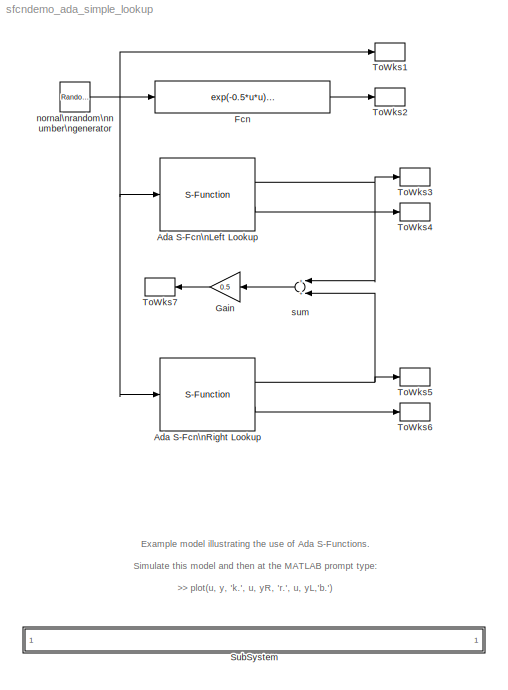
MODEL sfcndemo_ada_simple_lookup
KIND model
CONFIG InitFcn = TableX = linspace(-2, 2, 5)';TableY=exp(-0.5*TableX.*TableX)/sqrt(2*pi);
CONFIG PostLoadFcn = tmpStr = get_param(bdroot, 'RTWMakeCommand');incDir = fullfile(matlabroot,'simulink','ada','examples','simple_lookup');tmpStr = strrep(tmpStr, '<INCDIR>', incDir);set_param(bdroot, 'RTWMakeCommand', tmpStr);clear incDir tmpStr;
CONFIG StopFcn = try,    plot(u,y,'k.', u,yR,'r.', u,yL,'b.');end
BLOCK [S-Function] Ada S-Fcn\nLeft Lookup
  FunctionName = ada_simple_lookup
  Parameters = TableX, [TableY;0], 'left'
  Ports = [1, 2]
BLOCK [S-Function] Ada S-Fcn\nRight Lookup
  FunctionName = ada_simple_lookup
  Parameters = TableX, [0;TableY], 'right'
  Ports = [1, 2]
BLOCK [Fcn] Fcn
  Expr = exp(-0.5*u*u) / 2.506628274631
BLOCK [Gain] Gain
  Gain = 0.5
BLOCK [SubSystem] SubSystem
  MaskDisplay = disp('matlabroot<path>');
  MaskIconFrame = on
  MaskIconOpaque = on
  MaskIconRotate = none
  MaskIconUnits = autoscale
  MinAlgLoopOccurrences = off
  OpenFcn = evalin('base','edit(fullfile(matlabroot,''simulink'',''ada'',''examples'',''simple_lookup'',''simple_lookup.adb''))')
  Ports = []
  PropExecContextAcrossSSBoundary = on
  RTWSystemCode = Auto
  TreatAsAtomicUnit = off
BLOCK [ToWorkspace] ToWks1
  MaxDataPoints = inf
  SampleTime = -1
  SaveFormat = Array
  VariableName = u
BLOCK [ToWorkspace] ToWks2
  MaxDataPoints = inf
  SampleTime = -1
  SaveFormat = Array
  VariableName = y
BLOCK [ToWorkspace] ToWks3
  MaxDataPoints = inf
  SampleTime = -1
  SaveFormat = Array
  VariableName = yL
BLOCK [ToWorkspace] ToWks4
  MaxDataPoints = inf
  SampleTime = -1
  SaveFormat = Array
  VariableName = iL
BLOCK [ToWorkspace] ToWks5
  MaxDataPoints = inf
  SampleTime = -1
  SaveFormat = Array
  VariableName = yR
BLOCK [ToWorkspace] ToWks6
  MaxDataPoints = inf
  SampleTime = -1
  SaveFormat = Array
  VariableName = iR
BLOCK [ToWorkspace] ToWks7
  MaxDataPoints = inf
  SampleTime = -1
  SaveFormat = Array
  VariableName = yA
BLOCK [RandomNumber] nornal\nrandom\nnumber\ngenerator
  SampleTime = 0.01
BLOCK [Sum] sum
  Ports = [2, 1]
ANNOTATION (root): Example model illustrating the use of Ada S-Functions.\n\nSimulate this model and then at the MATLAB prompt type:\n\n>> plot(u, y, 'k.', u, yR, 'r.', u, yL,'b.')\n\nTo see the results. The black dots show the underlying bell curve.\nThe lookup tables implemented a Ada S-Functions try to approximate\nthis curve using left (blue dots) and right (red dots) continuous\ninterval based lookup methods.
NET Ada S-Fcn\nLeft Lookup:1 -> ToWks3:1, sum:1
LINE Ada S-Fcn\nLeft Lookup:2 -> ToWks4:1
NET Ada S-Fcn\nRight Lookup:1 -> ToWks5:1, sum:2
LINE Ada S-Fcn\nRight Lookup:2 -> ToWks6:1
LINE Fcn:1 -> ToWks2:1
LINE Gain:1 -> ToWks7:1
NET nornal\nrandom\nnumber\ngenerator:1 -> Ada S-Fcn\nLeft Lookup:1, Ada S-Fcn\nRight Lookup:1, Fcn:1, ToWks1:1
LINE sum:1 -> Gain:1
note: NET lines group one-source signal fan-out (src -> all destinations, sorted); 1:1 wires keep LINE
note: 1 file-system path scrubbed to <path> (not preserved elsewhere — flat text is the only slx artifact)
